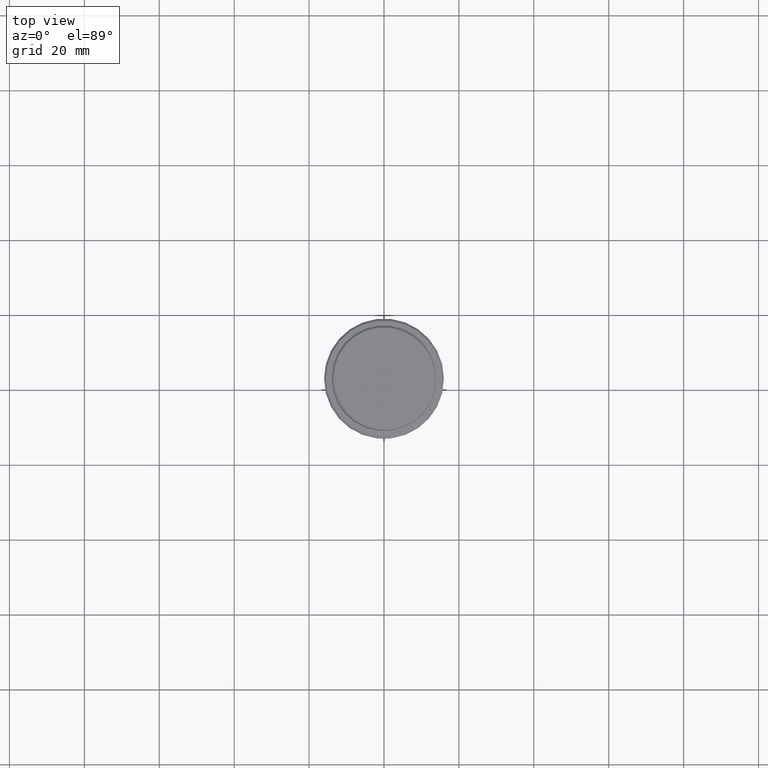
[diagram: clean part render]
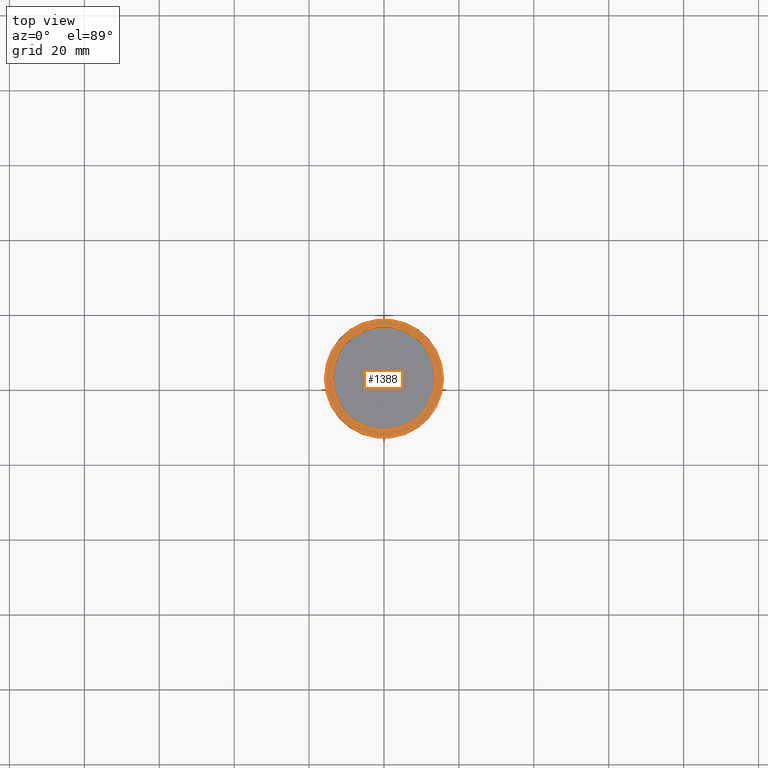
[diagram: same view with one face highlighted and labeled with its STEP entity id]
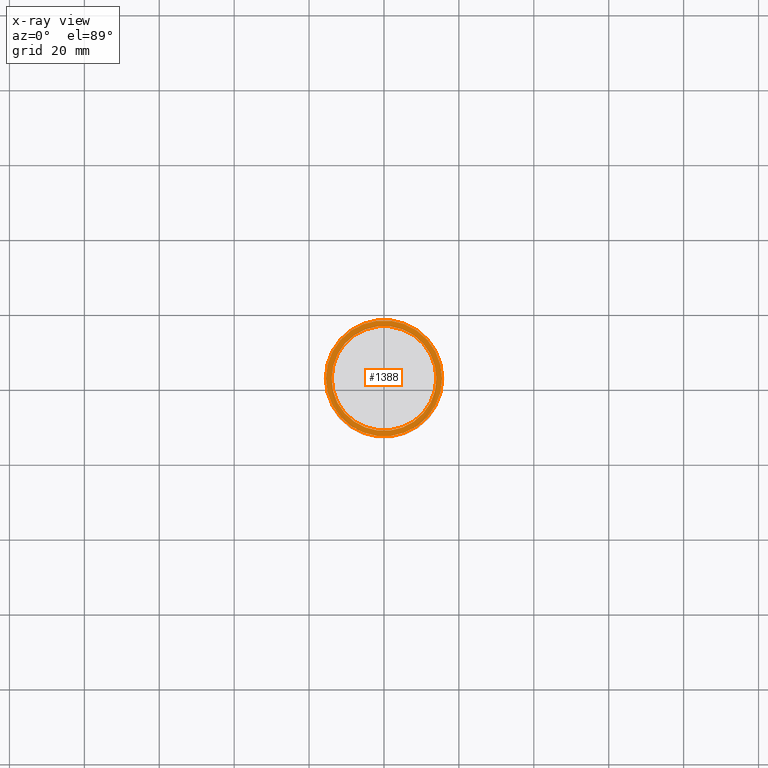
[diagram: x-ray of the same camera — body ghosted, the highlighted face saturated]
A machine part, top view. The second image highlights one B-rep face of the part: STEP entity #1388.
The next image is the same camera in x-ray: the body ghosted, the highlighted face saturated — about 0% of this face is hidden behind the body in this view.
In plain terms, the highlighted planar face has unit normal (0, -0, 1).
Its self-contained STEP definition (entity closure, byte-faithful):
#13 = EDGE_LOOP ( 'NONE', ( #94, #845 ) ) ;
#36 = EDGE_CURVE ( 'NONE', #1309, #802, #398, .T. ) ;
#94 = ORIENTED_EDGE ( 'NONE', *, *, #1002, .T. ) ;
#146 = AXIS2_PLACEMENT_3D ( 'NONE', #1307, #457, #1107 ) ;
#176 = DIRECTION ( 'NONE',  ( 1.000000000000000000, 0.000000000000000000, 0.000000000000000000 ) ) ;
#234 = CARTESIAN_POINT ( 'NONE',  ( 13.99999999999997158, 0.000000000000000000, -9.999999999999998224 ) ) ;
#235 = EDGE_CURVE ( 'NONE', #802, #1309, #516, .T. ) ;
#294 = CARTESIAN_POINT ( 'NONE',  ( 0.000000000000000000, 0.000000000000000000, -9.999999999999998224 ) ) ;
#303 = DIRECTION ( 'NONE',  ( -0.000000000000000000, -0.000000000000000000, 1.000000000000000000 ) ) ;
#381 = CARTESIAN_POINT ( 'NONE',  ( -13.99999999999997158, 1.714505518806290891E-15, -9.999999999999998224 ) ) ;
#398 = CIRCLE ( 'NONE', #146, 13.99999999999997158 ) ;
#457 = DIRECTION ( 'NONE',  ( 0.000000000000000000, 0.000000000000000000, -1.000000000000000000 ) ) ;
#507 = PLANE ( 'NONE',  #514 ) ;
#514 = AXIS2_PLACEMENT_3D ( 'NONE', #1053, #1366, #735 ) ;
#516 = CIRCLE ( 'NONE', #979, 13.99999999999997158 ) ;
#534 = EDGE_CURVE ( 'NONE', #596, #778, #818, .T. ) ;
#590 = AXIS2_PLACEMENT_3D ( 'NONE', #294, #721, #176 ) ;
#596 = VERTEX_POINT ( 'NONE', #1116 ) ;
#621 = FACE_OUTER_BOUND ( 'NONE', #13, .T. ) ;
#634 = CARTESIAN_POINT ( 'NONE',  ( 0.000000000000000000, 0.000000000000000000, -9.999999999999998224 ) ) ;
#671 = AXIS2_PLACEMENT_3D ( 'NONE', #634, #303, #759 ) ;
#710 = CIRCLE ( 'NONE', #590, 15.49999999999995737 ) ;
#721 = DIRECTION ( 'NONE',  ( -0.000000000000000000, -0.000000000000000000, 1.000000000000000000 ) ) ;
#735 = DIRECTION ( 'NONE',  ( 1.000000000000000000, 0.000000000000000000, 0.000000000000000000 ) ) ;
#759 = DIRECTION ( 'NONE',  ( 1.000000000000000000, 0.000000000000000000, 0.000000000000000000 ) ) ;
#778 = VERTEX_POINT ( 'NONE', #962 ) ;
#802 = VERTEX_POINT ( 'NONE', #234 ) ;
#814 = EDGE_LOOP ( 'NONE', ( #1104, #957 ) ) ;
#818 = CIRCLE ( 'NONE', #671, 15.49999999999995737 ) ;
#821 = DIRECTION ( 'NONE',  ( 1.000000000000000000, 0.000000000000000000, 0.000000000000000000 ) ) ;
#845 = ORIENTED_EDGE ( 'NONE', *, *, #534, .T. ) ;
#957 = ORIENTED_EDGE ( 'NONE', *, *, #36, .T. ) ;
#962 = CARTESIAN_POINT ( 'NONE',  ( -15.49999999999995737, 0.000000000000000000, -9.999999999999998224 ) ) ;
#979 = AXIS2_PLACEMENT_3D ( 'NONE', #1042, #1379, #821 ) ;
#1002 = EDGE_CURVE ( 'NONE', #778, #596, #710, .T. ) ;
#1038 = FACE_BOUND ( 'NONE', #814, .T. ) ;
#1042 = CARTESIAN_POINT ( 'NONE',  ( 0.000000000000000000, 0.000000000000000000, -9.999999999999998224 ) ) ;
#1053 = CARTESIAN_POINT ( 'NONE',  ( 0.000000000000000000, 13.49999999999996980, -9.999999999999998224 ) ) ;
#1104 = ORIENTED_EDGE ( 'NONE', *, *, #235, .T. ) ;
#1107 = DIRECTION ( 'NONE',  ( 1.000000000000000000, 0.000000000000000000, 0.000000000000000000 ) ) ;
#1116 = CARTESIAN_POINT ( 'NONE',  ( 15.49999999999995737, 1.928818708657077400E-15, -9.999999999999998224 ) ) ;
#1307 = CARTESIAN_POINT ( 'NONE',  ( 0.000000000000000000, 0.000000000000000000, -9.999999999999998224 ) ) ;
#1309 = VERTEX_POINT ( 'NONE', #381 ) ;
#1366 = DIRECTION ( 'NONE',  ( 0.000000000000000000, -0.000000000000000000, 1.000000000000000000 ) ) ;
#1379 = DIRECTION ( 'NONE',  ( 0.000000000000000000, 0.000000000000000000, -1.000000000000000000 ) ) ;
#1388 = ADVANCED_FACE ( 'NONE', ( #621, #1038 ), #507, .T. ) ;